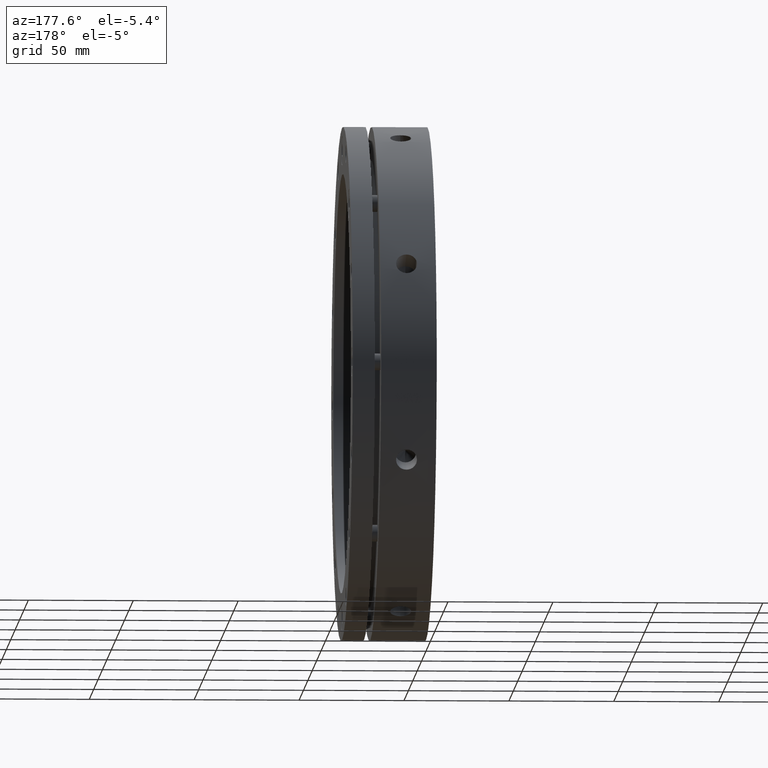
[diagram: clean part render]
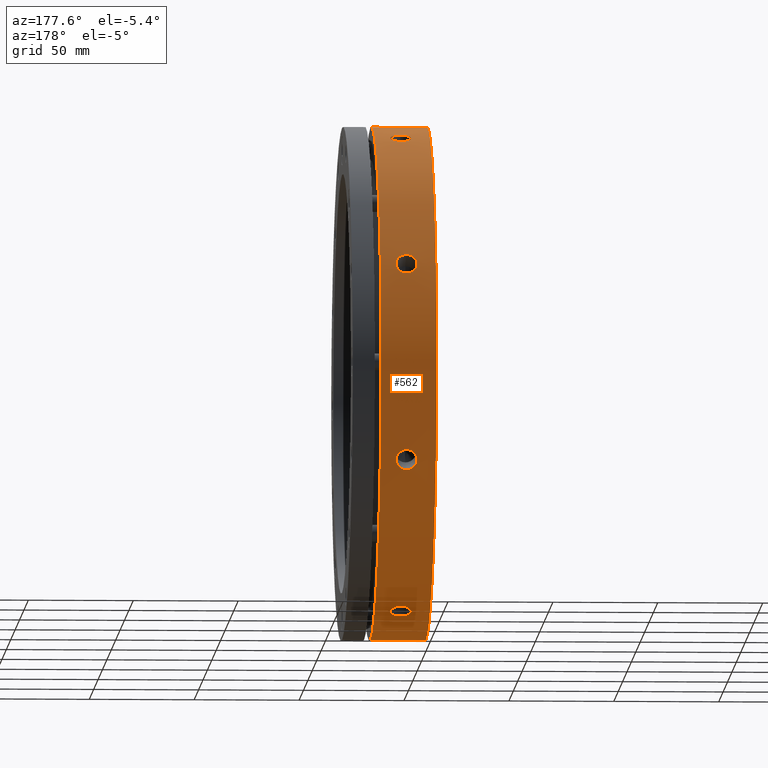
[diagram: same view with one face highlighted and labeled with its STEP entity id]
A machine part, auxiliary view. The second image highlights one B-rep face of the part: STEP entity #562.
In plain terms, the highlighted cylindrical surface (partial cylindrical patch) has radius 122.5 mm, axis along (1, 0, 0).
Its self-contained STEP definition (entity closure, byte-faithful):
#272 = LINE ( 'NONE', #3861, #293 ) ;
#277 = LINE ( 'NONE', #3866, #299 ) ;
#288 = CIRCLE ( 'NONE', #1630, 122.5000000000000000 ) ;
#293 = VECTOR ( 'NONE', #3862, 1000.000000000000000 ) ;
#299 = VECTOR ( 'NONE', #3912, 1000.000000000000000 ) ;
#300 = CIRCLE ( 'NONE', #1629, 122.5000000000000000 ) ;
#562 = ADVANCED_FACE ( 'NONE', ( #4522, #4519, #4556, #4523, #4576 ), #4567, .T. ) ;
#1151 = EDGE_CURVE ( 'NONE', #2740, #2836, #4851, .T. ) ;
#1152 = EDGE_CURVE ( 'NONE', #2964, #2738, #4866, .T. ) ;
#1161 = EDGE_CURVE ( 'NONE', #2730, #2986, #272, .T. ) ;
#1162 = EDGE_CURVE ( 'NONE', #2752, #2986, #288, .T. ) ;
#1163 = EDGE_CURVE ( 'NONE', #2728, #2778, #4854, .T. ) ;
#1164 = EDGE_CURVE ( 'NONE', #2808, #2752, #277, .T. ) ;
#1165 = EDGE_CURVE ( 'NONE', #2730, #2808, #300, .T. ) ;
#1166 = EDGE_CURVE ( 'NONE', #2778, #2728, #4852, .T. ) ;
#1167 = EDGE_CURVE ( 'NONE', #2738, #2964, #4857, .T. ) ;
#1188 = EDGE_CURVE ( 'NONE', #2974, #2975, #4869, .T. ) ;
#1189 = EDGE_CURVE ( 'NONE', #2975, #2974, #4865, .T. ) ;
#1190 = EDGE_CURVE ( 'NONE', #2836, #2740, #4864, .T. ) ;
#1313 = EDGE_LOOP ( 'NONE', ( #2140, #2143 ) ) ;
#1340 = EDGE_LOOP ( 'NONE', ( #2156, #2159, #2160, #2163 ) ) ;
#1358 = EDGE_LOOP ( 'NONE', ( #2152, #2155 ) ) ;
#1374 = EDGE_LOOP ( 'NONE', ( #2144, #2147 ) ) ;
#1403 = EDGE_LOOP ( 'NONE', ( #2148, #2151 ) ) ;
#1629 = AXIS2_PLACEMENT_3D ( 'NONE', #3915, #3916, #3917 ) ;
#1630 = AXIS2_PLACEMENT_3D ( 'NONE', #3873, #3874, #3875 ) ;
#2140 = ORIENTED_EDGE ( 'NONE', *, *, #1189, .T. ) ;
#2143 = ORIENTED_EDGE ( 'NONE', *, *, #1188, .T. ) ;
#2144 = ORIENTED_EDGE ( 'NONE', *, *, #1190, .T. ) ;
#2147 = ORIENTED_EDGE ( 'NONE', *, *, #1151, .T. ) ;
#2148 = ORIENTED_EDGE ( 'NONE', *, *, #1152, .T. ) ;
#2151 = ORIENTED_EDGE ( 'NONE', *, *, #1167, .T. ) ;
#2152 = ORIENTED_EDGE ( 'NONE', *, *, #1166, .T. ) ;
#2155 = ORIENTED_EDGE ( 'NONE', *, *, #1163, .T. ) ;
#2156 = ORIENTED_EDGE ( 'NONE', *, *, #1165, .T. ) ;
#2159 = ORIENTED_EDGE ( 'NONE', *, *, #1164, .T. ) ;
#2160 = ORIENTED_EDGE ( 'NONE', *, *, #1162, .T. ) ;
#2163 = ORIENTED_EDGE ( 'NONE', *, *, #1161, .F. ) ;
#2642 = DIRECTION ( 'NONE',  ( 1.000000000000000000, 0.0000000000000000000, 0.0000000000000000000 ) ) ;
#2644 = DIRECTION ( 'NONE',  ( 0.0000000000000000000, 0.0000000000000000000, -1.000000000000000000 ) ) ;
#2645 = CARTESIAN_POINT ( 'NONE',  ( 19.99999999999996800, 0.0000000000000000000, 0.0000000000000000000 ) ) ;
#2728 = VERTEX_POINT ( 'NONE', #4181 ) ;
#2730 = VERTEX_POINT ( 'NONE', #4173 ) ;
#2738 = VERTEX_POINT ( 'NONE', #4184 ) ;
#2740 = VERTEX_POINT ( 'NONE', #4185 ) ;
#2752 = VERTEX_POINT ( 'NONE', #4189 ) ;
#2778 = VERTEX_POINT ( 'NONE', #4202 ) ;
#2808 = VERTEX_POINT ( 'NONE', #4216 ) ;
#2836 = VERTEX_POINT ( 'NONE', #4233 ) ;
#2964 = VERTEX_POINT ( 'NONE', #5064 ) ;
#2974 = VERTEX_POINT ( 'NONE', #5074 ) ;
#2975 = VERTEX_POINT ( 'NONE', #5075 ) ;
#2986 = VERTEX_POINT ( 'NONE', #5086 ) ;
#3764 = CARTESIAN_POINT ( 'NONE',  ( 14.32609410522761300, 114.9943471758003300, 42.22025719499474400 ) ) ;
#3768 = CARTESIAN_POINT ( 'NONE',  ( 14.65730088590607000, 114.9831045738117600, 42.25091426325884900 ) ) ;
#3769 = CARTESIAN_POINT ( 'NONE',  ( 13.34269941666478800, 114.9831045842550500, -42.25091423475085900 ) ) ;
#3773 = CARTESIAN_POINT ( 'NONE',  ( 13.99999999999997300, 114.9943471758003100, 42.22025719499473700 ) ) ;
#3774 = CARTESIAN_POINT ( 'NONE',  ( 15.29843734080182700, 114.9389073626924500, 42.37100031606270500 ) ) ;
#3775 = CARTESIAN_POINT ( 'NONE',  ( 15.61005712557469700, 114.9061991712017100, 42.45975874398106200 ) ) ;
#3776 = CARTESIAN_POINT ( 'NONE',  ( 16.21529707525835900, 114.8190413443692100, 42.69488804680239700 ) ) ;
#3777 = CARTESIAN_POINT ( 'NONE',  ( 16.50797732766769200, 114.7643787644177400, 42.84180412001625600 ) ) ;
#3778 = CARTESIAN_POINT ( 'NONE',  ( 17.04960468263987700, 114.6371739549563200, 43.18102779070528600 ) ) ;
#3779 = CARTESIAN_POINT ( 'NONE',  ( 17.30205227487377300, 114.5642017134428600, 43.37451071390333400 ) ) ;
#3780 = CARTESIAN_POINT ( 'NONE',  ( 17.76876893047691700, 114.3980589812302500, 43.81082737447339100 ) ) ;
#3781 = CARTESIAN_POINT ( 'NONE',  ( 17.97587775555198800, 114.3073807220224000, 44.04708906967359600 ) ) ;
#3782 = CARTESIAN_POINT ( 'NONE',  ( 18.24734535578020500, 114.1604765148250400, 44.42582512085015600 ) ) ;
#3783 = CARTESIAN_POINT ( 'NONE',  ( 18.33134049528428700, 114.1096507201985900, 44.55624007285764800 ) ) ;
#3784 = CARTESIAN_POINT ( 'NONE',  ( 18.48606374067421500, 114.0041241507864200, 44.82555736996384600 ) ) ;
#3785 = CARTESIAN_POINT ( 'NONE',  ( 18.55697684240082500, 113.9491880847232200, 44.96504734240575400 ) ) ;
#3786 = CARTESIAN_POINT ( 'NONE',  ( 18.74511404923057600, 113.7818527195022500, 45.38757299533865800 ) ) ;
#3787 = CARTESIAN_POINT ( 'NONE',  ( 18.83958568139420800, 113.6660402199237300, 45.67695158334223700 ) ) ;
#3788 = CARTESIAN_POINT ( 'NONE',  ( 18.96733192865401200, 113.4256096999782100, 46.27076473771001000 ) ) ;
#3789 = CARTESIAN_POINT ( 'NONE',  ( 19.00022686770100200, 113.3003269591826000, 46.57676462584272100 ) ) ;
#3790 = CARTESIAN_POINT ( 'NONE',  ( 18.99977074847910100, 113.0475160600779100, 47.18705547833282300 ) ) ;
#3791 = CARTESIAN_POINT ( 'NONE',  ( 18.96714040759831800, 112.9219916390522700, 47.48658620923120600 ) ) ;
#3792 = CARTESIAN_POINT ( 'NONE',  ( 18.87156503469607600, 112.7350750802837200, 47.92784538268995200 ) ) ;
#3793 = CARTESIAN_POINT ( 'NONE',  ( 18.83187718191936000, 112.6730015023590700, 48.07358313469212900 ) ) ;
#3794 = CARTESIAN_POINT ( 'NONE',  ( 18.73648285309327800, 112.5493711124043000, 48.36231720214668400 ) ) ;
#3795 = CARTESIAN_POINT ( 'NONE',  ( 18.68051775109566700, 112.4876547930746300, 48.50567408860330700 ) ) ;
#3796 = CARTESIAN_POINT ( 'NONE',  ( 18.49202110629019900, 112.3073805370792700, 48.92232491861531700 ) ) ;
#3797 = CARTESIAN_POINT ( 'NONE',  ( 18.33827793734948100, 112.1923471351296700, 49.18537444182889800 ) ) ;
#3798 = CARTESIAN_POINT ( 'NONE',  ( 17.97511391701037900, 111.9730713640618400, 49.68254325184108900 ) ) ;
#3799 = CARTESIAN_POINT ( 'NONE',  ( 17.76380957166275800, 111.8684256185374200, 49.91751686981986300 ) ) ;
#3800 = CARTESIAN_POINT ( 'NONE',  ( 17.30231095239682300, 111.6797624365710800, 50.33819427561984100 ) ) ;
#3801 = CARTESIAN_POINT ( 'NONE',  ( 17.05050985988565100, 111.5945076643870400, 50.52671806830442600 ) ) ;
#3802 = CARTESIAN_POINT ( 'NONE',  ( 16.50375848204136300, 111.4432968371698300, 50.85936462121125600 ) ) ;
#3803 = CARTESIAN_POINT ( 'NONE',  ( 16.21275916808005800, 111.3787045305949400, 51.00048725481644100 ) ) ;
#3804 = CARTESIAN_POINT ( 'NONE',  ( 15.61104642041626700, 111.2747313873345700, 51.22694288964343200 ) ) ;
#3805 = CARTESIAN_POINT ( 'NONE',  ( 15.29589112132888900, 111.2345567220203200, 51.31400878605533200 ) ) ;
#3806 = CARTESIAN_POINT ( 'NONE',  ( 14.65050891625096500, 111.1808070485911800, 51.43036312202808300 ) ) ;
#3807 = CARTESIAN_POINT ( 'NONE',  ( 14.32609395561777500, 111.1675128521494100, 51.45905252010759800 ) ) ;
#3808 = CARTESIAN_POINT ( 'NONE',  ( 13.99999999999997300, 111.1675128521494100, 51.45905252010760500 ) ) ;
#3809 = CARTESIAN_POINT ( 'NONE',  ( 13.67390604444728900, 114.9943471758003100, -42.22025719499476500 ) ) ;
#3810 = CARTESIAN_POINT ( 'NONE',  ( 13.99999999999997300, 114.9943471758003000, -42.22025719499475100 ) ) ;
#3811 = CARTESIAN_POINT ( 'NONE',  ( 12.70156323945892600, 114.9389074131078600, -42.37100017921474700 ) ) ;
#3812 = CARTESIAN_POINT ( 'NONE',  ( 12.38994358561032200, 114.9061992510460200, -42.45975852756493700 ) ) ;
#3813 = CARTESIAN_POINT ( 'NONE',  ( 11.78470388036247300, 114.8190415045539100, -42.69488761568230500 ) ) ;
#3814 = CARTESIAN_POINT ( 'NONE',  ( 11.49202371782542500, 114.7643789718869600, -42.84180356359588200 ) ) ;
#3815 = CARTESIAN_POINT ( 'NONE',  ( 10.95039650929626700, 114.6371742729622000, -43.18102694581396200 ) ) ;
#3816 = CARTESIAN_POINT ( 'NONE',  ( 10.69794897412336700, 114.5642020954007000, -43.37450970393729900 ) ) ;
#3817 = CARTESIAN_POINT ( 'NONE',  ( 10.23123239116313800, 114.3980595143726300, -43.81082598124372400 ) ) ;
#3818 = CARTESIAN_POINT ( 'NONE',  ( 10.02412352692184600, 114.3073813171620400, -44.04708752393593600 ) ) ;
#3819 = CARTESIAN_POINT ( 'NONE',  ( 9.752655872009897900, 114.1604772286753900, -44.42582328616068600 ) ) ;
#3820 = CARTESIAN_POINT ( 'NONE',  ( 9.668660708136348700, 114.1096514755636400, -44.55623813798028000 ) ) ;
#3821 = CARTESIAN_POINT ( 'NONE',  ( 9.513937399464026600, 114.0041249938081500, -44.82555522555377800 ) ) ;
#3822 = CARTESIAN_POINT ( 'NONE',  ( 9.443024251126898200, 113.9491889689836600, -44.96504510122131400 ) ) ;
#3823 = CARTESIAN_POINT ( 'NONE',  ( 9.254886872448679500, 113.7818537159893900, -45.38757049599863100 ) ) ;
#3824 = CARTESIAN_POINT ( 'NONE',  ( 9.160415103475935800, 113.6660412949863900, -45.67694890664976300 ) ) ;
#3825 = CARTESIAN_POINT ( 'NONE',  ( 9.032668517805319700, 113.4256109423903800, -46.27076169072353900 ) ) ;
#3826 = CARTESIAN_POINT ( 'NONE',  ( 8.999773369796669100, 113.3003284150136100, -46.57676108582469300 ) ) ;
#3827 = CARTESIAN_POINT ( 'NONE',  ( 9.000229009005591900, 113.0475173867481400, -47.18705230133380000 ) ) ;
#3828 = CARTESIAN_POINT ( 'NONE',  ( 9.032859151125618900, 112.9219929022514300, -47.48658320658947200 ) ) ;
#3829 = CARTESIAN_POINT ( 'NONE',  ( 9.128434265507294800, 112.7350762487790400, -47.92784263447607200 ) ) ;
#3830 = CARTESIAN_POINT ( 'NONE',  ( 9.168122038871453900, 112.6730026393789200, -48.07358047007740300 ) ) ;
#3831 = CARTESIAN_POINT ( 'NONE',  ( 9.263516219974306400, 112.5493721865343100, -48.36231470270495700 ) ) ;
#3832 = CARTESIAN_POINT ( 'NONE',  ( 9.319481260776107900, 112.4876558270293300, -48.50567169114965100 ) ) ;
#3833 = CARTESIAN_POINT ( 'NONE',  ( 9.507977758004875200, 112.3073814453867500, -48.92232283487385300 ) ) ;
#3834 = CARTESIAN_POINT ( 'NONE',  ( 9.661720859192733700, 112.1923479646035400, -49.18537255087292000 ) ) ;
#3835 = CARTESIAN_POINT ( 'NONE',  ( 10.02488478827585200, 111.9730720429663800, -49.68254172281754000 ) ) ;
#3836 = CARTESIAN_POINT ( 'NONE',  ( 10.23618913066092300, 111.8684262145424700, -49.91751553502577800 ) ) ;
#3837 = CARTESIAN_POINT ( 'NONE',  ( 10.69768780559412100, 111.6797628788037000, -50.33819329537215000 ) ) ;
#3838 = CARTESIAN_POINT ( 'NONE',  ( 10.94948894637239100, 111.5945080379130900, -50.52671724387202100 ) ) ;
#3839 = CARTESIAN_POINT ( 'NONE',  ( 11.49624045506887500, 111.4432970877431600, -50.85936407269616700 ) ) ;
#3840 = CARTESIAN_POINT ( 'NONE',  ( 11.78723988834763900, 111.3787047196817500, -51.00048684214587500 ) ) ;
#3841 = CARTESIAN_POINT ( 'NONE',  ( 12.38895286750502200, 111.2747314843365700, -51.22694267920678600 ) ) ;
#3842 = CARTESIAN_POINT ( 'NONE',  ( 12.70410828833081000, 111.2345567838857200, -51.31400865202253700 ) ) ;
#3843 = CARTESIAN_POINT ( 'NONE',  ( 13.34949078618411300, 111.1808070606736200, -51.43036309598270600 ) ) ;
#3844 = CARTESIAN_POINT ( 'NONE',  ( 13.67390589483745000, 111.1675128521494100, -51.45905252010763300 ) ) ;
#3845 = CARTESIAN_POINT ( 'NONE',  ( 13.99999999999997300, 111.1675128521494000, -51.45905252010761900 ) ) ;
#3861 = CARTESIAN_POINT ( 'NONE',  ( 19.99999999999996800, 0.0000000000000000000, -122.5000000000000000 ) ) ;
#3862 = DIRECTION ( 'NONE',  ( 1.000000000000000000, 0.0000000000000000000, 0.0000000000000000000 ) ) ;
#3866 = CARTESIAN_POINT ( 'NONE',  ( 19.99999999999996800, 1.500192328955507800E-014, 122.5000000000000000 ) ) ;
#3870 = CARTESIAN_POINT ( 'NONE',  ( 14.65730088590606800, 42.25091426325884900, -114.9831045738117400 ) ) ;
#3871 = CARTESIAN_POINT ( 'NONE',  ( 14.32609410522761300, 42.22025719499473700, -114.9943471758003000 ) ) ;
#3872 = CARTESIAN_POINT ( 'NONE',  ( 13.99999999999997300, 111.1675128521494000, -51.45905252010761900 ) ) ;
#3873 = CARTESIAN_POINT ( 'NONE',  ( 26.49999999999996800, 0.0000000000000000000, 0.0000000000000000000 ) ) ;
#3874 = DIRECTION ( 'NONE',  ( -1.000000000000000000, -0.0000000000000000000, -0.0000000000000000000 ) ) ;
#3875 = DIRECTION ( 'NONE',  ( 0.0000000000000000000, 0.0000000000000000000, -1.000000000000000000 ) ) ;
#3876 = CARTESIAN_POINT ( 'NONE',  ( 13.99999999999997300, 42.22025719499473700, -114.9943471758003100 ) ) ;
#3877 = CARTESIAN_POINT ( 'NONE',  ( 15.29843734080182400, 42.37100031606270500, -114.9389073626924500 ) ) ;
#3878 = CARTESIAN_POINT ( 'NONE',  ( 15.61005712557470000, 42.45975874398107000, -114.9061991712017300 ) ) ;
#3879 = CARTESIAN_POINT ( 'NONE',  ( 16.21529707525836300, 42.69488804680239000, -114.8190413443692100 ) ) ;
#3880 = CARTESIAN_POINT ( 'NONE',  ( 16.50797732766769200, 42.84180412001625600, -114.7643787644177400 ) ) ;
#3881 = CARTESIAN_POINT ( 'NONE',  ( 17.04960468263988500, 43.18102779070528600, -114.6371739549563200 ) ) ;
#3882 = CARTESIAN_POINT ( 'NONE',  ( 17.30205227487377300, 43.37451071390333400, -114.5642017134428700 ) ) ;
#3883 = CARTESIAN_POINT ( 'NONE',  ( 17.76876893047692400, 43.81082737447341200, -114.3980589812302600 ) ) ;
#3884 = CARTESIAN_POINT ( 'NONE',  ( 17.97587775555199100, 44.04708906967360300, -114.3073807220224200 ) ) ;
#3885 = CARTESIAN_POINT ( 'NONE',  ( 18.24734535578020800, 44.42582512085015600, -114.1604765148250800 ) ) ;
#3886 = CARTESIAN_POINT ( 'NONE',  ( 18.33134049528429100, 44.55624007285764800, -114.1096507201986000 ) ) ;
#3887 = CARTESIAN_POINT ( 'NONE',  ( 18.48606374067421900, 44.82555736996386000, -114.0041241507864500 ) ) ;
#3888 = CARTESIAN_POINT ( 'NONE',  ( 18.55697684240083200, 44.96504734240576800, -113.9491880847232500 ) ) ;
#3889 = CARTESIAN_POINT ( 'NONE',  ( 18.74511404923058700, 45.38757299533868000, -113.7818527195023300 ) ) ;
#3890 = CARTESIAN_POINT ( 'NONE',  ( 18.83958568139420500, 45.67695158334224500, -113.6660402199237300 ) ) ;
#3891 = CARTESIAN_POINT ( 'NONE',  ( 18.96733192865401900, 46.27076473771002400, -113.4256096999782200 ) ) ;
#3892 = CARTESIAN_POINT ( 'NONE',  ( 19.00022686770100200, 46.57676462584272800, -113.3003269591826100 ) ) ;
#3893 = CARTESIAN_POINT ( 'NONE',  ( 18.99977074847910400, 47.18705547833283000, -113.0475160600779100 ) ) ;
#3894 = CARTESIAN_POINT ( 'NONE',  ( 18.96714040759831800, 47.48658620923122700, -112.9219916390522500 ) ) ;
#3895 = CARTESIAN_POINT ( 'NONE',  ( 18.87156503469606900, 47.92784538268993100, -112.7350750802836600 ) ) ;
#3896 = CARTESIAN_POINT ( 'NONE',  ( 18.83187718191935300, 48.07358313469212200, -112.6730015023590600 ) ) ;
#3897 = CARTESIAN_POINT ( 'NONE',  ( 18.73648285309327500, 48.36231720214666300, -112.5493711124043200 ) ) ;
#3898 = CARTESIAN_POINT ( 'NONE',  ( 18.68051775109567100, 48.50567408860331400, -112.4876547930746100 ) ) ;
#3899 = CARTESIAN_POINT ( 'NONE',  ( 18.49202110629019600, 48.92232491861531000, -112.3073805370792500 ) ) ;
#3900 = CARTESIAN_POINT ( 'NONE',  ( 18.33827793734948500, 49.18537444182889800, -112.1923471351296800 ) ) ;
#3901 = CARTESIAN_POINT ( 'NONE',  ( 17.97511391701037200, 49.68254325184110300, -111.9730713640618800 ) ) ;
#3902 = CARTESIAN_POINT ( 'NONE',  ( 17.76380957166275800, 49.91751686981987000, -111.8684256185374400 ) ) ;
#3903 = CARTESIAN_POINT ( 'NONE',  ( 17.30231095239681600, 50.33819427561986300, -111.6797624365710400 ) ) ;
#3904 = CARTESIAN_POINT ( 'NONE',  ( 17.05050985988566100, 50.52671806830441900, -111.5945076643870200 ) ) ;
#3905 = CARTESIAN_POINT ( 'NONE',  ( 16.50375848204137300, 50.85936462121122800, -111.4432968371697700 ) ) ;
#3906 = CARTESIAN_POINT ( 'NONE',  ( 16.21275916808005100, 51.00048725481642700, -111.3787045305949300 ) ) ;
#3907 = CARTESIAN_POINT ( 'NONE',  ( 15.61104642041627100, 51.22694288964343900, -111.2747313873346100 ) ) ;
#3908 = CARTESIAN_POINT ( 'NONE',  ( 15.29589112132888900, 51.31400878605535400, -111.2345567220203400 ) ) ;
#3909 = CARTESIAN_POINT ( 'NONE',  ( 14.65050891625096900, 51.43036312202809800, -111.1808070485911800 ) ) ;
#3910 = CARTESIAN_POINT ( 'NONE',  ( 14.32609395561777400, 51.45905252010759800, -111.1675128521494300 ) ) ;
#3911 = CARTESIAN_POINT ( 'NONE',  ( 13.99999999999997300, 51.45905252010760500, -111.1675128521494100 ) ) ;
#3912 = DIRECTION ( 'NONE',  ( 1.000000000000000000, 0.0000000000000000000, 0.0000000000000000000 ) ) ;
#3913 = CARTESIAN_POINT ( 'NONE',  ( 13.99999999999997300, 51.45905252010760500, -111.1675128521494100 ) ) ;
#3914 = CARTESIAN_POINT ( 'NONE',  ( 13.67390604444728900, 51.45905252010759800, -111.1675128521494000 ) ) ;
#3915 = CARTESIAN_POINT ( 'NONE',  ( -3.469446951953614200E-014, 0.0000000000000000000, 0.0000000000000000000 ) ) ;
#3916 = DIRECTION ( 'NONE',  ( 1.000000000000000000, 0.0000000000000000000, 0.0000000000000000000 ) ) ;
#3917 = DIRECTION ( 'NONE',  ( 0.0000000000000000000, 0.0000000000000000000, -1.000000000000000000 ) ) ;
#3918 = CARTESIAN_POINT ( 'NONE',  ( 14.32609410522761300, 111.1675128521494000, -51.45905252010761900 ) ) ;
#3919 = CARTESIAN_POINT ( 'NONE',  ( 13.34269941666477900, 51.42942500668516500, -111.1812409401323000 ) ) ;
#3920 = CARTESIAN_POINT ( 'NONE',  ( 12.70156323945892200, 51.31325930160213000, -111.2349024063604600 ) ) ;
#3921 = CARTESIAN_POINT ( 'NONE',  ( 12.38994358561032200, 51.22736950840275200, -111.2745358731717100 ) ) ;
#3922 = CARTESIAN_POINT ( 'NONE',  ( 11.78470388036247100, 50.99947830216320500, -111.3791674122561900 ) ) ;
#3923 = CARTESIAN_POINT ( 'NONE',  ( 11.49202371782542200, 50.85694079160344200, -111.4444004277646800 ) ) ;
#3924 = CARTESIAN_POINT ( 'NONE',  ( 10.95039650929626500, 50.52712633249153400, -111.5943202764596500 ) ) ;
#3925 = CARTESIAN_POINT ( 'NONE',  ( 10.69794897412337100, 50.33871424058816000, -111.6795341251797000 ) ) ;
#3926 = CARTESIAN_POINT ( 'NONE',  ( 10.23123239116314100, 49.91271149647396000, -111.8705757779163900 ) ) ;
#3927 = CARTESIAN_POINT ( 'NONE',  ( 10.02412352692185700, 49.68153018934930300, -111.9735187487342400 ) ) ;
#3928 = CARTESIAN_POINT ( 'NONE',  ( 9.752655872009906800, 49.30984668644939700, -112.1374484973282200 ) ) ;
#3929 = CARTESIAN_POINT ( 'NONE',  ( 9.668660708136345100, 49.18169022567605700, -112.1937264887330600 ) ) ;
#3930 = CARTESIAN_POINT ( 'NONE',  ( 9.513937399464030200, 48.91663579591936200, -112.3095439368016700 ) ) ;
#3931 = CARTESIAN_POINT ( 'NONE',  ( 9.443024251126901800, 48.77915592324318100, -112.3693325381082500 ) ) ;
#3932 = CARTESIAN_POINT ( 'NONE',  ( 9.254886872448675900, 48.36206145924876400, -112.5497792178549500 ) ) ;
#3933 = CARTESIAN_POINT ( 'NONE',  ( 9.160415103475935800, 48.07554827451153300, -112.6725089061185100 ) ) ;
#3934 = CARTESIAN_POINT ( 'NONE',  ( 9.032668517805326800, 47.48564929541400700, -112.9223880197687300 ) ) ;
#3935 = CARTESIAN_POINT ( 'NONE',  ( 8.999773369796674400, 47.18068692342670500, -113.0501741424113600 ) ) ;
#3936 = CARTESIAN_POINT ( 'NONE',  ( 9.000229009005591900, 46.57038147399637800, -113.3029508069512000 ) ) ;
#3937 = CARTESIAN_POINT ( 'NONE',  ( 9.032859151125618900, 46.26982192552255700, -113.4259919270398300 ) ) ;
#3938 = CARTESIAN_POINT ( 'NONE',  ( 9.128434265507294800, 45.82563435861440100, -113.6058394275738700 ) ) ;
#3939 = CARTESIAN_POINT ( 'NONE',  ( 9.168122038871455700, 45.67868947664569400, -113.6649989692635400 ) ) ;
#3940 = CARTESIAN_POINT ( 'NONE',  ( 9.263516219974301100, 45.38710361122647200, -113.7817449715475100 ) ) ;
#3941 = CARTESIAN_POINT ( 'NONE',  ( 9.319481260776106200, 45.24209485625064500, -113.8394736138911400 ) ) ;
#3942 = CARTESIAN_POINT ( 'NONE',  ( 9.507977758004877000, 44.82000476940045500, -114.0066172252740000 ) ) ;
#3943 = CARTESIAN_POINT ( 'NONE',  ( 9.661720859192730200, 44.55265957710300700, -114.1112805089208300 ) ) ;
#3944 = CARTESIAN_POINT ( 'NONE',  ( 10.02488478827585400, 44.04605639308350400, -114.3077807106592200 ) ) ;
#3945 = CARTESIAN_POINT ( 'NONE',  ( 10.23618913066092300, 43.80590904216837300, -114.3999365117715300 ) ) ;
#3946 = CARTESIAN_POINT ( 'NONE',  ( 10.69768780559412500, 43.37503982107092800, -114.5639954847446800 ) ) ;
#3947 = CARTESIAN_POINT ( 'NONE',  ( 10.94948894637238900, 43.18144898254787000, -114.6370177710222200 ) ) ;
#3948 = CARTESIAN_POINT ( 'NONE',  ( 11.49624045506887000, 42.83930986589133700, -114.7653123111691400 ) ) ;
#3949 = CARTESIAN_POINT ( 'NONE',  ( 11.78723988834762800, 42.69384729716444600, -114.8194274769577100 ) ) ;
#3950 = CARTESIAN_POINT ( 'NONE',  ( 12.38895286750502200, 42.46019865936495600, -114.9060357552083200 ) ) ;
#3951 = CARTESIAN_POINT ( 'NONE',  ( 12.70410828833080600, 42.37022591645539600, -114.9391928918760000 ) ) ;
#3952 = CARTESIAN_POINT ( 'NONE',  ( 13.34949078618410600, 42.24994410633975400, -114.9834611144511900 ) ) ;
#3953 = CARTESIAN_POINT ( 'NONE',  ( 13.67390589483745500, 42.22025719499473000, -114.9943471758003000 ) ) ;
#3954 = CARTESIAN_POINT ( 'NONE',  ( 13.99999999999997300, 42.22025719499473700, -114.9943471758003100 ) ) ;
#3956 = CARTESIAN_POINT ( 'NONE',  ( 14.65730088590606300, 111.1812409529060100, -51.42942497914248900 ) ) ;
#3957 = CARTESIAN_POINT ( 'NONE',  ( 15.29843734080182200, 111.2349024674775000, -51.31325916918696400 ) ) ;
#3958 = CARTESIAN_POINT ( 'NONE',  ( 15.61005712557469800, 111.2745359697426300, -51.22736929891497200 ) ) ;
#3959 = CARTESIAN_POINT ( 'NONE',  ( 16.21529707525835900, 111.3791676038364500, -50.99947788404759300 ) ) ;
#3960 = CARTESIAN_POINT ( 'NONE',  ( 16.50797732766769200, 111.4444006745104500, -50.85694025145193800 ) ) ;
#3961 = CARTESIAN_POINT ( 'NONE',  ( 17.04960468263988500, 111.5943206490239600, -50.52712551019902800 ) ) ;
#3962 = CARTESIAN_POINT ( 'NONE',  ( 17.30205227487377000, 111.6795345692485300, -50.33871325634935800 ) ) ;
#3963 = CARTESIAN_POINT ( 'NONE',  ( 17.76876893047690900, 111.8705763860898700, -49.91271013432318400 ) ) ;
#3964 = CARTESIAN_POINT ( 'NONE',  ( 17.97587775555198100, 111.9735194209085000, -49.68152867552042600 ) ) ;
#3965 = CARTESIAN_POINT ( 'NONE',  ( 18.24734535578020100, 112.1374492898812500, -49.30984488435962700 ) ) ;
#3966 = CARTESIAN_POINT ( 'NONE',  ( 18.33134049528428000, 112.1937273227742500, -49.18168832338741900 ) ) ;
#3967 = CARTESIAN_POINT ( 'NONE',  ( 18.48606374067421100, 112.3095448570221600, -48.91663368348609700 ) ) ;
#3968 = CARTESIAN_POINT ( 'NONE',  ( 18.55697684240082200, 112.3693334975983500, -48.77915371321989100 ) ) ;
#3969 = CARTESIAN_POINT ( 'NONE',  ( 18.74511404923058000, 112.5497802805324700, -48.36205898732571700 ) ) ;
#3970 = CARTESIAN_POINT ( 'NONE',  ( 18.83958568139420500, 112.6725100386418300, -48.07554562162001600 ) ) ;
#3971 = CARTESIAN_POINT ( 'NONE',  ( 18.96733192865401200, 112.9223892957953800, -47.48564626235113900 ) ) ;
#3972 = CARTESIAN_POINT ( 'NONE',  ( 19.00022686770100600, 113.0501756161541400, -47.18068339082798000 ) ) ;
#3973 = CARTESIAN_POINT ( 'NONE',  ( 18.99977074847910800, 113.3029521153311700, -46.57037828942129200 ) ) ;
#3974 = CARTESIAN_POINT ( 'NONE',  ( 18.96714040759831500, 113.4259931570114000, -46.26981890911749700 ) ) ;
#3975 = CARTESIAN_POINT ( 'NONE',  ( 18.87156503469607200, 113.6058405446035500, -45.82563158908275400 ) ) ;
#3976 = CARTESIAN_POINT ( 'NONE',  ( 18.83187718191936000, 113.6650000494361700, -45.67868678848413600 ) ) ;
#3977 = CARTESIAN_POINT ( 'NONE',  ( 18.73648285309327800, 113.7817459793950700, -45.38710108432967200 ) ) ;
#3978 = CARTESIAN_POINT ( 'NONE',  ( 18.68051775109566700, 113.8394745780304900, -45.24209242987851800 ) ) ;
#3979 = CARTESIAN_POINT ( 'NONE',  ( 18.49202110629019600, 114.0066180564313200, -44.82000265370235300 ) ) ;
#3980 = CARTESIAN_POINT ( 'NONE',  ( 18.33827793734948100, 114.1112812595020200, -44.55265765346862800 ) ) ;
#3981 = CARTESIAN_POINT ( 'NONE',  ( 17.97511391701039000, 114.3077813117841800, -44.04605483184261100 ) ) ;
#3982 = CARTESIAN_POINT ( 'NONE',  ( 17.76380957166276500, 114.3999370341742300, -43.80590767688723000 ) ) ;
#3983 = CARTESIAN_POINT ( 'NONE',  ( 17.30231095239681900, 114.5639958651787100, -43.37503881522541600 ) ) ;
#3984 = CARTESIAN_POINT ( 'NONE',  ( 17.05050985988565800, 114.6370180898611300, -43.18144813546332700 ) ) ;
#3985 = CARTESIAN_POINT ( 'NONE',  ( 16.50375848204137300, 114.7653125218457700, -42.83930930085044500 ) ) ;
#3986 = CARTESIAN_POINT ( 'NONE',  ( 16.21275916808006600, 114.8194276350553300, -42.69384687165774700 ) ) ;
#3987 = CARTESIAN_POINT ( 'NONE',  ( 15.61104642041627400, 114.9060358354187200, -42.46019844197302000 ) ) ;
#3988 = CARTESIAN_POINT ( 'NONE',  ( 15.29589112132888800, 114.9391929429060300, -42.37022577793442900 ) ) ;
#3989 = CARTESIAN_POINT ( 'NONE',  ( 14.65050891625096500, 114.9834611243244600, -42.24994407937931800 ) ) ;
#3990 = CARTESIAN_POINT ( 'NONE',  ( 14.32609395561777000, 114.9943471758003100, -42.22025719499475100 ) ) ;
#3991 = CARTESIAN_POINT ( 'NONE',  ( 13.99999999999997300, 114.9943471758003000, -42.22025719499475100 ) ) ;
#4008 = CARTESIAN_POINT ( 'NONE',  ( 14.65730088590607000, 51.42942497914252400, 111.1812409529059900 ) ) ;
#4014 = CARTESIAN_POINT ( 'NONE',  ( 14.32609410522761100, 51.45905252010762600, 111.1675128521494000 ) ) ;
#4035 = CARTESIAN_POINT ( 'NONE',  ( 13.67390604444728900, 42.22025719499477200, 114.9943471758003000 ) ) ;
#4036 = CARTESIAN_POINT ( 'NONE',  ( 13.99999999999997300, 51.45905252010764000, 111.1675128521494000 ) ) ;
#4037 = CARTESIAN_POINT ( 'NONE',  ( 15.29843734080182200, 51.31325916918697800, 111.2349024674775000 ) ) ;
#4038 = CARTESIAN_POINT ( 'NONE',  ( 15.61005712557470000, 51.22736929891500100, 111.2745359697426300 ) ) ;
#4039 = CARTESIAN_POINT ( 'NONE',  ( 16.21529707525834900, 50.99947788404762900, 111.3791676038364600 ) ) ;
#4040 = CARTESIAN_POINT ( 'NONE',  ( 16.50797732766769200, 50.85694025145193800, 111.4444006745104200 ) ) ;
#4041 = CARTESIAN_POINT ( 'NONE',  ( 17.04960468263988100, 50.52712551019903500, 111.5943206490239100 ) ) ;
#4042 = CARTESIAN_POINT ( 'NONE',  ( 17.30205227487376600, 50.33871325634935800, 111.6795345692485200 ) ) ;
#4043 = CARTESIAN_POINT ( 'NONE',  ( 17.76876893047692000, 49.91271013432319800, 111.8705763860898800 ) ) ;
#4044 = CARTESIAN_POINT ( 'NONE',  ( 17.97587775555198800, 49.68152867552044700, 111.9735194209085200 ) ) ;
#4045 = CARTESIAN_POINT ( 'NONE',  ( 18.24734535578020500, 49.30984488435961300, 112.1374492898812300 ) ) ;
#4046 = CARTESIAN_POINT ( 'NONE',  ( 18.33134049528428400, 49.18168832338743400, 112.1937273227742500 ) ) ;
#4047 = CARTESIAN_POINT ( 'NONE',  ( 18.48606374067420800, 48.91663368348611100, 112.3095448570221900 ) ) ;
#4048 = CARTESIAN_POINT ( 'NONE',  ( 18.55697684240081800, 48.77915371321993400, 112.3693334975983800 ) ) ;
#4049 = CARTESIAN_POINT ( 'NONE',  ( 18.74511404923057600, 48.36205898732573900, 112.5497802805324500 ) ) ;
#4050 = CARTESIAN_POINT ( 'NONE',  ( 18.83958568139420100, 48.07554562162003000, 112.6725100386417900 ) ) ;
#4051 = CARTESIAN_POINT ( 'NONE',  ( 18.96733192865401200, 47.48564626235114600, 112.9223892957953700 ) ) ;
#4052 = CARTESIAN_POINT ( 'NONE',  ( 19.00022686770100200, 47.18068339082797300, 113.0501756161540900 ) ) ;
#4053 = CARTESIAN_POINT ( 'NONE',  ( 18.99977074847910400, 46.57037828942131300, 113.3029521153311700 ) ) ;
#4054 = CARTESIAN_POINT ( 'NONE',  ( 18.96714040759831100, 46.26981890911750400, 113.4259931570113800 ) ) ;
#4055 = CARTESIAN_POINT ( 'NONE',  ( 18.87156503469606900, 45.82563158908278200, 113.6058405446035400 ) ) ;
#4056 = CARTESIAN_POINT ( 'NONE',  ( 18.83187718191934900, 45.67868678848413600, 113.6650000494361400 ) ) ;
#4057 = CARTESIAN_POINT ( 'NONE',  ( 18.73648285309327800, 45.38710108432969300, 113.7817459793951000 ) ) ;
#4058 = CARTESIAN_POINT ( 'NONE',  ( 18.68051775109566700, 45.24209242987853200, 113.8394745780304900 ) ) ;
#4059 = CARTESIAN_POINT ( 'NONE',  ( 18.49202110629020600, 44.82000265370237500, 114.0066180564313200 ) ) ;
#4060 = CARTESIAN_POINT ( 'NONE',  ( 18.33827793734949200, 44.55265765346867800, 114.1112812595020600 ) ) ;
#4061 = CARTESIAN_POINT ( 'NONE',  ( 17.97511391701038600, 44.04605483184264600, 114.3077813117842000 ) ) ;
#4062 = CARTESIAN_POINT ( 'NONE',  ( 17.76380957166276500, 43.80590767688724400, 114.3999370341742300 ) ) ;
#4063 = CARTESIAN_POINT ( 'NONE',  ( 17.30231095239682300, 43.37503881522542300, 114.5639958651787400 ) ) ;
#4064 = CARTESIAN_POINT ( 'NONE',  ( 17.05050985988565400, 43.18144813546333400, 114.6370180898611300 ) ) ;
#4065 = CARTESIAN_POINT ( 'NONE',  ( 16.50375848204136300, 42.83930930085047400, 114.7653125218457400 ) ) ;
#4066 = CARTESIAN_POINT ( 'NONE',  ( 16.21275916808005800, 42.69384687165776200, 114.8194276350553100 ) ) ;
#4067 = CARTESIAN_POINT ( 'NONE',  ( 15.61104642041628100, 42.46019844197304800, 114.9060358354187800 ) ) ;
#4068 = CARTESIAN_POINT ( 'NONE',  ( 15.29589112132889300, 42.37022577793445100, 114.9391929429060600 ) ) ;
#4069 = CARTESIAN_POINT ( 'NONE',  ( 14.65050891625096500, 42.24994407937934000, 114.9834611243244800 ) ) ;
#4070 = CARTESIAN_POINT ( 'NONE',  ( 14.32609395561777400, 42.22025719499477200, 114.9943471758002700 ) ) ;
#4071 = CARTESIAN_POINT ( 'NONE',  ( 13.99999999999997300, 42.22025719499477200, 114.9943471758003000 ) ) ;
#4072 = CARTESIAN_POINT ( 'NONE',  ( 13.99999999999997300, 111.1675128521494100, 51.45905252010760500 ) ) ;
#4073 = CARTESIAN_POINT ( 'NONE',  ( 13.99999999999997300, 42.22025719499477200, 114.9943471758003000 ) ) ;
#4074 = CARTESIAN_POINT ( 'NONE',  ( 13.67390604444729100, 111.1675128521494100, 51.45905252010761200 ) ) ;
#4075 = CARTESIAN_POINT ( 'NONE',  ( 13.34269941666478800, 42.25091423475088700, 114.9831045842550300 ) ) ;
#4076 = CARTESIAN_POINT ( 'NONE',  ( 12.70156323945892600, 42.37100017921478200, 114.9389074131078600 ) ) ;
#4077 = CARTESIAN_POINT ( 'NONE',  ( 12.38994358561031600, 42.45975852756495100, 114.9061992510460200 ) ) ;
#4078 = CARTESIAN_POINT ( 'NONE',  ( 11.78470388036247000, 42.69488761568232600, 114.8190415045538700 ) ) ;
#4079 = CARTESIAN_POINT ( 'NONE',  ( 11.49202371782542200, 42.84180356359589600, 114.7643789718868800 ) ) ;
#4080 = CARTESIAN_POINT ( 'NONE',  ( 10.95039650929626700, 43.18102694581397600, 114.6371742729622100 ) ) ;
#4081 = CARTESIAN_POINT ( 'NONE',  ( 10.69794897412336900, 43.37450970393733500, 114.5642020954007000 ) ) ;
#4082 = CARTESIAN_POINT ( 'NONE',  ( 10.23123239116313800, 43.81082598124375200, 114.3980595143726500 ) ) ;
#4083 = CARTESIAN_POINT ( 'NONE',  ( 10.02412352692185100, 44.04708752393595700, 114.3073813171620400 ) ) ;
#4084 = CARTESIAN_POINT ( 'NONE',  ( 9.752655872009901500, 44.42582328616069300, 114.1604772286753800 ) ) ;
#4085 = CARTESIAN_POINT ( 'NONE',  ( 9.668660708136339800, 44.55623813798031600, 114.1096514755636100 ) ) ;
#4086 = CARTESIAN_POINT ( 'NONE',  ( 9.513937399464021300, 44.82555522555379900, 114.0041249938081600 ) ) ;
#4087 = CARTESIAN_POINT ( 'NONE',  ( 9.443024251126896500, 44.96504510122134200, 113.9491889689836300 ) ) ;
#4088 = CARTESIAN_POINT ( 'NONE',  ( 9.254886872448675900, 45.38757049599866600, 113.7818537159894100 ) ) ;
#4089 = CARTESIAN_POINT ( 'NONE',  ( 9.160415103475934000, 45.67694890664981200, 113.6660412949864000 ) ) ;
#4090 = CARTESIAN_POINT ( 'NONE',  ( 9.032668517805323200, 46.27076169072360300, 113.4256109423904300 ) ) ;
#4091 = CARTESIAN_POINT ( 'NONE',  ( 8.999773369796670900, 46.57676108582470700, 113.3003284150136100 ) ) ;
#4092 = CARTESIAN_POINT ( 'NONE',  ( 9.000229009005584800, 47.18705230133379300, 113.0475173867480700 ) ) ;
#4093 = CARTESIAN_POINT ( 'NONE',  ( 9.032859151125617100, 47.48658320658947200, 112.9219929022514000 ) ) ;
#4094 = CARTESIAN_POINT ( 'NONE',  ( 9.128434265507291200, 47.92784263447609300, 112.7350762487790100 ) ) ;
#4095 = CARTESIAN_POINT ( 'NONE',  ( 9.168122038871453900, 48.07358047007743800, 112.6730026393789200 ) ) ;
#4096 = CARTESIAN_POINT ( 'NONE',  ( 9.263516219974306400, 48.36231470270498500, 112.5493721865343100 ) ) ;
#4097 = CARTESIAN_POINT ( 'NONE',  ( 9.319481260776118600, 48.50567169114969300, 112.4876558270293600 ) ) ;
#4098 = CARTESIAN_POINT ( 'NONE',  ( 9.507977758004877000, 48.92232283487386000, 112.3073814453867200 ) ) ;
#4099 = CARTESIAN_POINT ( 'NONE',  ( 9.661720859192730200, 49.18537255087293400, 112.1923479646035000 ) ) ;
#4100 = CARTESIAN_POINT ( 'NONE',  ( 10.02488478827585000, 49.68254172281754700, 111.9730720429663200 ) ) ;
#4101 = CARTESIAN_POINT ( 'NONE',  ( 10.23618913066092700, 49.91751553502583500, 111.8684262145424500 ) ) ;
#4102 = CARTESIAN_POINT ( 'NONE',  ( 10.69768780559413200, 50.33819329537220700, 111.6797628788036900 ) ) ;
#4103 = CARTESIAN_POINT ( 'NONE',  ( 10.94948894637239800, 50.52671724387204900, 111.5945080379130700 ) ) ;
#4104 = CARTESIAN_POINT ( 'NONE',  ( 11.49624045506887700, 50.85936407269616700, 111.4432970877431300 ) ) ;
#4105 = CARTESIAN_POINT ( 'NONE',  ( 11.78723988834764200, 51.00048684214590400, 111.3787047196817400 ) ) ;
#4106 = CARTESIAN_POINT ( 'NONE',  ( 12.38895286750502900, 51.22694267920680700, 111.2747314843365700 ) ) ;
#4107 = CARTESIAN_POINT ( 'NONE',  ( 12.70410828833081100, 51.31400865202257200, 111.2345567838857400 ) ) ;
#4108 = CARTESIAN_POINT ( 'NONE',  ( 13.34949078618410900, 51.43036309598271300, 111.1808070606735400 ) ) ;
#4109 = CARTESIAN_POINT ( 'NONE',  ( 13.67390589483745500, 51.45905252010762600, 111.1675128521493700 ) ) ;
#4110 = CARTESIAN_POINT ( 'NONE',  ( 13.99999999999997300, 51.45905252010764000, 111.1675128521494000 ) ) ;
#4114 = CARTESIAN_POINT ( 'NONE',  ( 13.34269941666478200, 111.1812409401323000, 51.42942500668515700 ) ) ;
#4115 = CARTESIAN_POINT ( 'NONE',  ( 12.70156323945892600, 111.2349024063604800, 51.31325930160213700 ) ) ;
#4116 = CARTESIAN_POINT ( 'NONE',  ( 12.38994358561032300, 111.2745358731717100, 51.22736950840275200 ) ) ;
#4117 = CARTESIAN_POINT ( 'NONE',  ( 11.78470388036247000, 111.3791674122561800, 50.99947830216319700 ) ) ;
#4118 = CARTESIAN_POINT ( 'NONE',  ( 11.49202371782542500, 111.4444004277646800, 50.85694079160343500 ) ) ;
#4119 = CARTESIAN_POINT ( 'NONE',  ( 10.95039650929627100, 111.5943202764596800, 50.52712633249155500 ) ) ;
#4120 = CARTESIAN_POINT ( 'NONE',  ( 10.69794897412336500, 111.6795341251797300, 50.33871424058815300 ) ) ;
#4121 = CARTESIAN_POINT ( 'NONE',  ( 10.23123239116313800, 111.8705757779164000, 49.91271149647393900 ) ) ;
#4122 = CARTESIAN_POINT ( 'NONE',  ( 10.02412352692185700, 111.9735187487342200, 49.68153018934928200 ) ) ;
#4123 = CARTESIAN_POINT ( 'NONE',  ( 9.752655872009905000, 112.1374484973282600, 49.30984668644939700 ) ) ;
#4124 = CARTESIAN_POINT ( 'NONE',  ( 9.668660708136341600, 112.1937264887330600, 49.18169022567603600 ) ) ;
#4125 = CARTESIAN_POINT ( 'NONE',  ( 9.513937399464024800, 112.3095439368016600, 48.91663579591935500 ) ) ;
#4126 = CARTESIAN_POINT ( 'NONE',  ( 9.443024251126896500, 112.3693325381082400, 48.77915592324317400 ) ) ;
#4127 = CARTESIAN_POINT ( 'NONE',  ( 9.254886872448677700, 112.5497792178549900, 48.36206145924876400 ) ) ;
#4128 = CARTESIAN_POINT ( 'NONE',  ( 9.160415103475934000, 112.6725089061185200, 48.07554827451152600 ) ) ;
#4129 = CARTESIAN_POINT ( 'NONE',  ( 9.032668517805321400, 112.9223880197686800, 47.48564929541397800 ) ) ;
#4130 = CARTESIAN_POINT ( 'NONE',  ( 8.999773369796669100, 113.0501741424113400, 47.18068692342668400 ) ) ;
#4131 = CARTESIAN_POINT ( 'NONE',  ( 9.000229009005588300, 113.3029508069511700, 46.57038147399635600 ) ) ;
#4132 = CARTESIAN_POINT ( 'NONE',  ( 9.032859151125617100, 113.4259919270398000, 46.26982192552255700 ) ) ;
#4133 = CARTESIAN_POINT ( 'NONE',  ( 9.128434265507293000, 113.6058394275738800, 45.82563435861439400 ) ) ;
#4134 = CARTESIAN_POINT ( 'NONE',  ( 9.168122038871453900, 113.6649989692635200, 45.67868947664568000 ) ) ;
#4135 = CARTESIAN_POINT ( 'NONE',  ( 9.263516219974301100, 113.7817449715475400, 45.38710361122648600 ) ) ;
#4136 = CARTESIAN_POINT ( 'NONE',  ( 9.319481260776107900, 113.8394736138911600, 45.24209485625063800 ) ) ;
#4137 = CARTESIAN_POINT ( 'NONE',  ( 9.507977758004877000, 114.0066172252739800, 44.82000476940045500 ) ) ;
#4138 = CARTESIAN_POINT ( 'NONE',  ( 9.661720859192728400, 114.1112805089208300, 44.55265957710300000 ) ) ;
#4139 = CARTESIAN_POINT ( 'NONE',  ( 10.02488478827584700, 114.3077807106591600, 44.04605639308348900 ) ) ;
#4140 = CARTESIAN_POINT ( 'NONE',  ( 10.23618913066092500, 114.3999365117715100, 43.80590904216837300 ) ) ;
#4141 = CARTESIAN_POINT ( 'NONE',  ( 10.69768780559413000, 114.5639954847446700, 43.37503982107091400 ) ) ;
#4142 = CARTESIAN_POINT ( 'NONE',  ( 10.94948894637238900, 114.6370177710222600, 43.18144898254787700 ) ) ;
#4143 = CARTESIAN_POINT ( 'NONE',  ( 11.49624045506887000, 114.7653123111691500, 42.83930986589133000 ) ) ;
#4144 = CARTESIAN_POINT ( 'NONE',  ( 11.78723988834763100, 114.8194274769577600, 42.69384729716446700 ) ) ;
#4145 = CARTESIAN_POINT ( 'NONE',  ( 12.38895286750502200, 114.9060357552083800, 42.46019865936495600 ) ) ;
#4146 = CARTESIAN_POINT ( 'NONE',  ( 12.70410828833081300, 114.9391928918760600, 42.37022591645541100 ) ) ;
#4147 = CARTESIAN_POINT ( 'NONE',  ( 13.34949078618411300, 114.9834611144512000, 42.24994410633976800 ) ) ;
#4148 = CARTESIAN_POINT ( 'NONE',  ( 13.67390589483745700, 114.9943471758003600, 42.22025719499474400 ) ) ;
#4149 = CARTESIAN_POINT ( 'NONE',  ( 13.99999999999997300, 114.9943471758003100, 42.22025719499473700 ) ) ;
#4173 = CARTESIAN_POINT ( 'NONE',  ( -3.469446951953614200E-014, 0.0000000000000000000, -122.5000000000000000 ) ) ;
#4181 = CARTESIAN_POINT ( 'NONE',  ( 13.99999999999997300, 42.22025719499473700, -114.9943471758003100 ) ) ;
#4184 = CARTESIAN_POINT ( 'NONE',  ( 13.99999999999997300, 111.1675128521494000, -51.45905252010761900 ) ) ;
#4185 = CARTESIAN_POINT ( 'NONE',  ( 13.99999999999997300, 114.9943471758003100, 42.22025719499473700 ) ) ;
#4189 = CARTESIAN_POINT ( 'NONE',  ( 26.49999999999996800, 1.500192328955507800E-014, 122.5000000000000000 ) ) ;
#4202 = CARTESIAN_POINT ( 'NONE',  ( 13.99999999999997300, 51.45905252010760500, -111.1675128521494100 ) ) ;
#4216 = CARTESIAN_POINT ( 'NONE',  ( -3.469446951953614200E-014, 1.500192328955507800E-014, 122.5000000000000000 ) ) ;
#4233 = CARTESIAN_POINT ( 'NONE',  ( 13.99999999999997300, 111.1675128521494100, 51.45905252010760500 ) ) ;
#4519 = FACE_BOUND ( 'NONE', #1374, .T. ) ;
#4522 = FACE_BOUND ( 'NONE', #1313, .T. ) ;
#4523 = FACE_BOUND ( 'NONE', #1358, .T. ) ;
#4556 = FACE_BOUND ( 'NONE', #1403, .T. ) ;
#4567 = CYLINDRICAL_SURFACE ( 'NONE', #4911, 122.5000000000000000 ) ;
#4576 = FACE_OUTER_BOUND ( 'NONE', #1340, .T. ) ;
#4851 = B_SPLINE_CURVE_WITH_KNOTS ( 'NONE', 3,
 ( #3773, #3764, #3768, #3774, #3775, #3776, #3777, #3778, #3779, #3780, #3781, #3782, #3783, #3784, #3785, #3786, #3787, #3788, #3789, #3790, #3791, #3792, #3793, #3794, #3795, #3796, #3797, #3798, #3799, #3800, #3801, #3802, #3803, #3804, #3805, #3806, #3807, #3808 ),
 .UNSPECIFIED., .F., .F.,
 ( 4, 2, 2, 2, 2, 2, 2, 2, 2, 2, 2, 2, 2, 2, 2, 2, 2, 2, 4 ),
 ( 0.007818729798522614300, 0.008795646024581793900, 0.009772562250640975300, 0.01074947847670015500, 0.01172639470275933400, 0.01270331092881851600, 0.01319176904184810600, 0.01368022715487769700, 0.01465714338093688000, 0.01563405960699606300, 0.01661097583305525000, 0.01709943394608482900, 0.01758789205911441600, 0.01856480828517356000, 0.01954172451123270500, 0.02051864073729185000, 0.02149555696335099500, 0.02247247318941014000, 0.02344938941546928500 ),
 .UNSPECIFIED. ) ;
#4852 = B_SPLINE_CURVE_WITH_KNOTS ( 'NONE', 3,
 ( #3913, #3914, #3919, #3920, #3921, #3922, #3923, #3924, #3925, #3926, #3927, #3928, #3929, #3930, #3931, #3932, #3933, #3934, #3935, #3936, #3937, #3938, #3939, #3940, #3941, #3942, #3943, #3944, #3945, #3946, #3947, #3948, #3949, #3950, #3951, #3952, #3953, #3954 ),
 .UNSPECIFIED., .F., .F.,
 ( 4, 2, 2, 2, 2, 2, 2, 2, 2, 2, 2, 2, 2, 2, 2, 2, 2, 2, 4 ),
 ( 0.02344938941546928500, 0.02442630564133335700, 0.02540322186719743200, 0.02638013809306150400, 0.02735705431892557900, 0.02833397054478965100, 0.02882242865772169400, 0.02931088677065374000, 0.03028780299651782900, 0.03126471922238191500, 0.03224163544824600700, 0.03273009356117804300, 0.03321855167411007900, 0.03419546789997415100, 0.03517238412583822300, 0.03614930035170230100, 0.03712621657756637300, 0.03810313280343044500, 0.03908004902929451700 ),
 .UNSPECIFIED. ) ;
#4854 = B_SPLINE_CURVE_WITH_KNOTS ( 'NONE', 3,
 ( #3876, #3871, #3870, #3877, #3878, #3879, #3880, #3881, #3882, #3883, #3884, #3885, #3886, #3887, #3888, #3889, #3890, #3891, #3892, #3893, #3894, #3895, #3896, #3897, #3898, #3899, #3900, #3901, #3902, #3903, #3904, #3905, #3906, #3907, #3908, #3909, #3910, #3911 ),
 .UNSPECIFIED., .F., .F.,
 ( 4, 2, 2, 2, 2, 2, 2, 2, 2, 2, 2, 2, 2, 2, 2, 2, 2, 2, 4 ),
 ( 0.007818729798522612600, 0.008795646024581771400, 0.009772562250640928400, 0.01074947847670008500, 0.01172639470275924400, 0.01270331092881840300, 0.01319176904184798100, 0.01368022715487756000, 0.01465714338093672100, 0.01563405960699588300, 0.01661097583305504500, 0.01709943394608463100, 0.01758789205911422100, 0.01856480828517340100, 0.01954172451123257700, 0.02051864073729175300, 0.02149555696335092900, 0.02247247318941010500, 0.02344938941546928500 ),
 .UNSPECIFIED. ) ;
#4857 = B_SPLINE_CURVE_WITH_KNOTS ( 'NONE', 3,
 ( #3872, #3918, #3956, #3957, #3958, #3959, #3960, #3961, #3962, #3963, #3964, #3965, #3966, #3967, #3968, #3969, #3970, #3971, #3972, #3973, #3974, #3975, #3976, #3977, #3978, #3979, #3980, #3981, #3982, #3983, #3984, #3985, #3986, #3987, #3988, #3989, #3990, #3991 ),
 .UNSPECIFIED., .F., .F.,
 ( 4, 2, 2, 2, 2, 2, 2, 2, 2, 2, 2, 2, 2, 2, 2, 2, 2, 2, 4 ),
 ( 0.007818729798522619500, 0.008795646024581764400, 0.009772562250640909300, 0.01074947847670005400, 0.01172639470275919900, 0.01270331092881834200, 0.01319176904184792300, 0.01368022715487750100, 0.01465714338093666500, 0.01563405960699583100, 0.01661097583305499700, 0.01709943394608457600, 0.01758789205911415900, 0.01856480828517334500, 0.01954172451123252500, 0.02051864073729171200, 0.02149555696335089100, 0.02247247318941007800, 0.02344938941546926100 ),
 .UNSPECIFIED. ) ;
#4864 = B_SPLINE_CURVE_WITH_KNOTS ( 'NONE', 3,
 ( #4072, #4074, #4114, #4115, #4116, #4117, #4118, #4119, #4120, #4121, #4122, #4123, #4124, #4125, #4126, #4127, #4128, #4129, #4130, #4131, #4132, #4133, #4134, #4135, #4136, #4137, #4138, #4139, #4140, #4141, #4142, #4143, #4144, #4145, #4146, #4147, #4148, #4149 ),
 .UNSPECIFIED., .F., .F.,
 ( 4, 2, 2, 2, 2, 2, 2, 2, 2, 2, 2, 2, 2, 2, 2, 2, 2, 2, 4 ),
 ( 0.02344938941546928500, 0.02442630564133336700, 0.02540322186719744900, 0.02638013809306152800, 0.02735705431892561000, 0.02833397054478969300, 0.02882242865772174200, 0.02931088677065379200, 0.03028780299651787100, 0.03126471922238195600, 0.03224163544824603500, 0.03273009356117807100, 0.03321855167411010700, 0.03419546789997417200, 0.03517238412583823700, 0.03614930035170230800, 0.03712621657756637300, 0.03810313280343044500, 0.03908004902929451000 ),
 .UNSPECIFIED. ) ;
#4865 = B_SPLINE_CURVE_WITH_KNOTS ( 'NONE', 3,
 ( #4073, #4035, #4075, #4076, #4077, #4078, #4079, #4080, #4081, #4082, #4083, #4084, #4085, #4086, #4087, #4088, #4089, #4090, #4091, #4092, #4093, #4094, #4095, #4096, #4097, #4098, #4099, #4100, #4101, #4102, #4103, #4104, #4105, #4106, #4107, #4108, #4109, #4110 ),
 .UNSPECIFIED., .F., .F.,
 ( 4, 2, 2, 2, 2, 2, 2, 2, 2, 2, 2, 2, 2, 2, 2, 2, 2, 2, 4 ),
 ( 0.02344938941546927500, 0.02442630564133335700, 0.02540322186719744200, 0.02638013809306152500, 0.02735705431892560700, 0.02833397054478969300, 0.02882242865772173500, 0.02931088677065377800, 0.03028780299651788500, 0.03126471922238199100, 0.03224163544824609800, 0.03273009356117813400, 0.03321855167411016900, 0.03419546789997422700, 0.03517238412583828500, 0.03614930035170233600, 0.03712621657756638700, 0.03810313280343044500, 0.03908004902929449600 ),
 .UNSPECIFIED. ) ;
#4866 = B_SPLINE_CURVE_WITH_KNOTS ( 'NONE', 3,
 ( #3810, #3809, #3769, #3811, #3812, #3813, #3814, #3815, #3816, #3817, #3818, #3819, #3820, #3821, #3822, #3823, #3824, #3825, #3826, #3827, #3828, #3829, #3830, #3831, #3832, #3833, #3834, #3835, #3836, #3837, #3838, #3839, #3840, #3841, #3842, #3843, #3844, #3845 ),
 .UNSPECIFIED., .F., .F.,
 ( 4, 2, 2, 2, 2, 2, 2, 2, 2, 2, 2, 2, 2, 2, 2, 2, 2, 2, 4 ),
 ( 0.02344938941546926100, 0.02442630564133331200, 0.02540322186719736300, 0.02638013809306141000, 0.02735705431892546100, 0.02833397054478951200, 0.02882242865772154100, 0.02931088677065357000, 0.03028780299651764900, 0.03126471922238172100, 0.03224163544824579900, 0.03273009356117785600, 0.03321855167410991300, 0.03419546789997400500, 0.03517238412583809800, 0.03614930035170219700, 0.03712621657756629000, 0.03810313280343038300, 0.03908004902929447500 ),
 .UNSPECIFIED. ) ;
#4869 = B_SPLINE_CURVE_WITH_KNOTS ( 'NONE', 3,
 ( #4036, #4014, #4008, #4037, #4038, #4039, #4040, #4041, #4042, #4043, #4044, #4045, #4046, #4047, #4048, #4049, #4050, #4051, #4052, #4053, #4054, #4055, #4056, #4057, #4058, #4059, #4060, #4061, #4062, #4063, #4064, #4065, #4066, #4067, #4068, #4069, #4070, #4071 ),
 .UNSPECIFIED., .F., .F.,
 ( 4, 2, 2, 2, 2, 2, 2, 2, 2, 2, 2, 2, 2, 2, 2, 2, 2, 2, 4 ),
 ( 0.007818729798522633400, 0.008795646024581783500, 0.009772562250640935400, 0.01074947847670009100, 0.01172639470275924600, 0.01270331092881840000, 0.01319176904184798600, 0.01368022715487757100, 0.01465714338093673800, 0.01563405960699590700, 0.01661097583305507600, 0.01709943394608465900, 0.01758789205911424200, 0.01856480828517341500, 0.01954172451123258700, 0.02051864073729176000, 0.02149555696335092900, 0.02247247318941009800, 0.02344938941546927500 ),
 .UNSPECIFIED. ) ;
#4911 = AXIS2_PLACEMENT_3D ( 'NONE', #2645, #2642, #2644 ) ;
#5064 = CARTESIAN_POINT ( 'NONE',  ( 13.99999999999997300, 114.9943471758003000, -42.22025719499475100 ) ) ;
#5074 = CARTESIAN_POINT ( 'NONE',  ( 13.99999999999997300, 51.45905252010764000, 111.1675128521494000 ) ) ;
#5075 = CARTESIAN_POINT ( 'NONE',  ( 13.99999999999997300, 42.22025719499477200, 114.9943471758003000 ) ) ;
#5086 = CARTESIAN_POINT ( 'NONE',  ( 26.49999999999996800, 0.0000000000000000000, -122.5000000000000000 ) ) ;